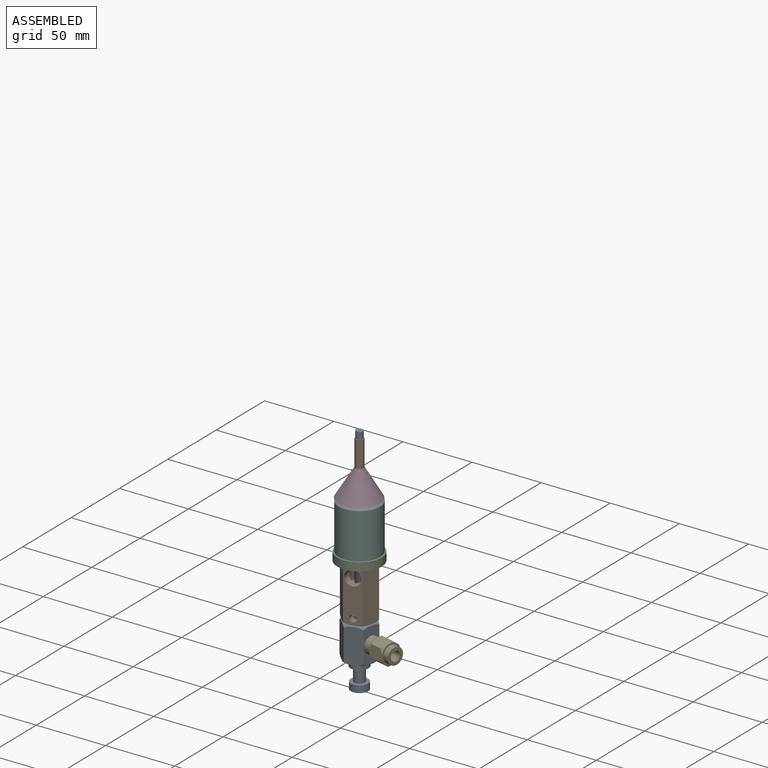
[diagram: assembled view]
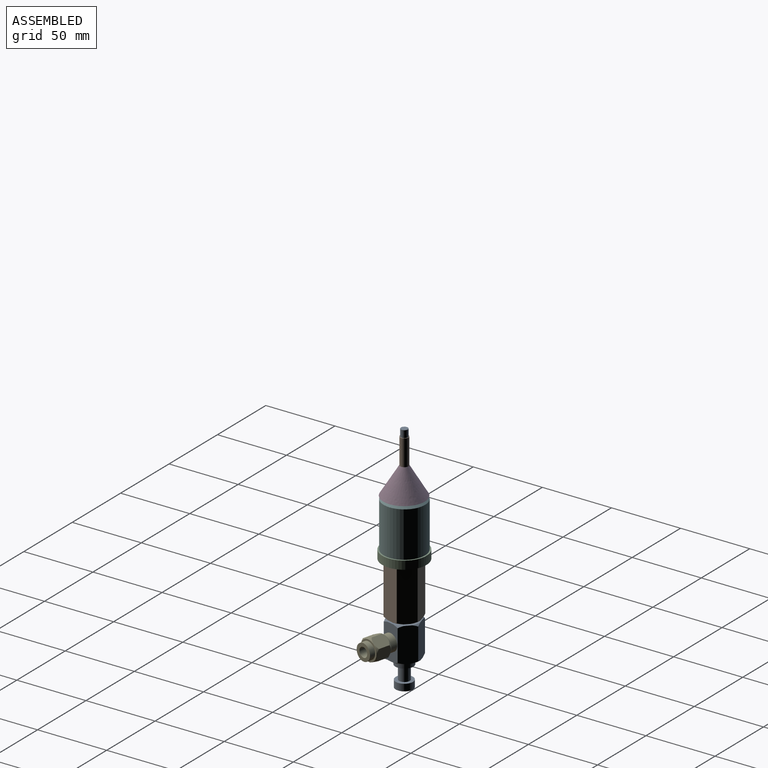
[diagram: assembled view, second angle]
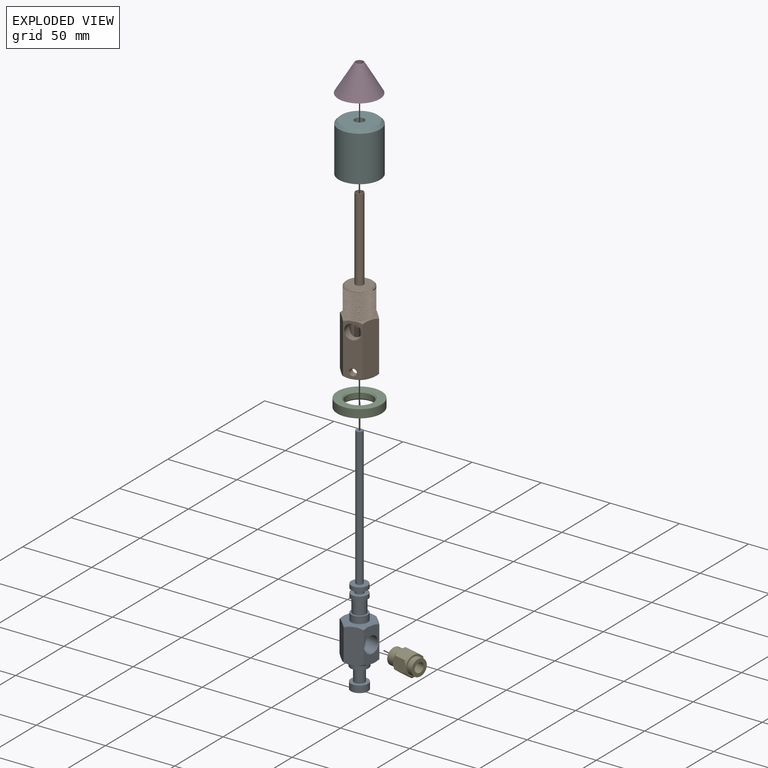
[diagram: exploded view]
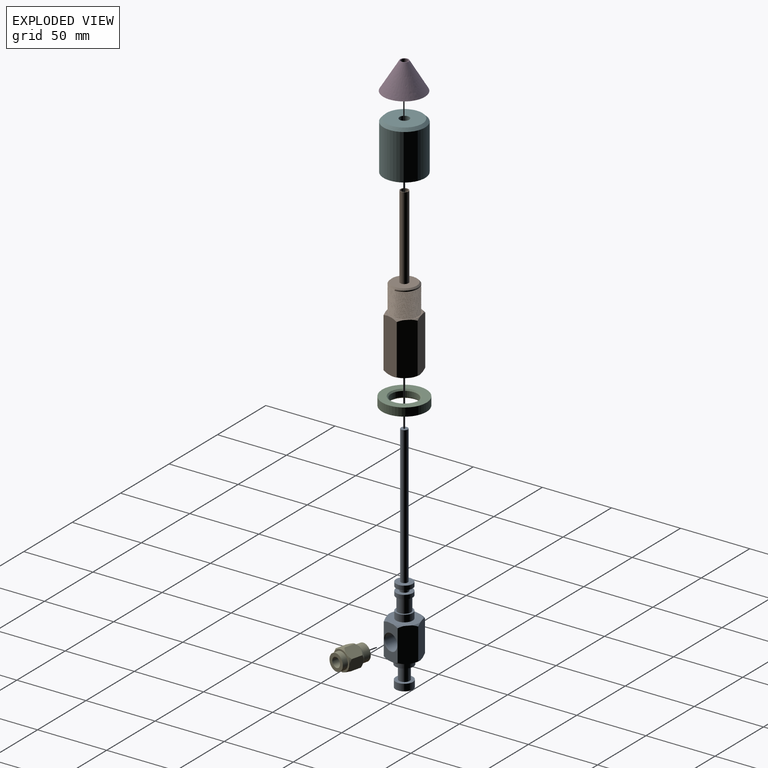
[diagram: exploded view, second angle]
ASSEMBLY  parts=6 mates=5
PART A: 41 faces, bbox 25.5x25.5x169.5 mm
  f0: plane 22.2x22.2mm, normal (0,0,1), area 268.1mm2, adj f1,f2,f3,f4,f5,f6,f8,f32
  f1: plane 25.54x12.49mm, normal (0.29,-0.96,0), area 304.1mm2, adj f0,f2,f6,f7,f27,f28,f32,f37
  f2: plane 25.54x9.62mm, normal (-0.69,-0.73,0), area 304.1mm2, adj f0,f1,f3,f7,f26,f27,f36,f37
  f3: plane 25.54x12.68mm, normal (-0.97,0.23,0), area 304.1mm2, adj f0,f2,f4,f7,f26,f31,f35,f36
  f4: plane 25.54x12.49mm, normal (-0.29,0.96,0), area 304.1mm2, adj f0,f3,f5,f7,f30,f31,f34,f35
  f5: plane 25.54x9.62mm, normal (0.69,0.73,0), area 304.1mm2, adj f0,f4,f6,f7,f29,f30,f33,f34
  f6: plane 25.54x12.68mm, normal (0.97,-0.23,0), area 191mm2, adj f0,f1,f5,f7,f28,f29,f32,f33
  f7: plane 21.98x21.98mm, normal (0,0,-1), area 243.8mm2, adj f1,f2,f3,f4,f5,f6,f25,f26
  f8: cylinder r=6mm len=12mm, axis (0,0,1), area 188.8mm2, adj f0,f9
  f9: plane 12x12mm, normal (0,0,1), area 41.5mm2, adj f8,f10
  f10: cylinder r=4.77mm len=10mm, axis (0,0,1), area 299.9mm2, adj f9,f11
  f11: plane 12x12mm, normal (0,0,-1), area 41.5mm2, adj f10,f12
  f12: cylinder r=6mm len=12mm, axis (0,0,1), area 112.8mm2, adj f11,f13
  f13: plane 12x12mm, normal (0,0,1), area 83.8mm2, adj f12,f14
  f14: cylinder r=3.05mm len=6.11mm, axis (0,0,1), area 57.6mm2, adj f13,f15
  f15: plane 12x12mm, normal (0,0,-1), area 83.8mm2, adj f14,f16
  f16: cylinder r=6mm len=12mm, axis (0,0,1), area 113.1mm2, adj f15,f17
  f17: plane 12x12mm, normal (0,0,1), area 93.5mm2, adj f16,f18
  f18: cylinder r=2.5mm len=100mm, axis (0,0,1), area 1570.8mm2, adj f17,f19
  f19: plane 5x5mm, normal (0,0,1), area 19.6mm2, adj f18
  f20: plane 12.5x12.5mm, normal (0,0,-1), area 122.7mm2, adj f21
  f21: cylinder r=6.25mm len=12.5mm, axis (0,0,1), area 196.3mm2, adj f20,f22
  f22: plane 12.5x12.5mm, normal (0,0,1), area 75.5mm2, adj f21,f23
  f23: cylinder r=3.88mm len=10mm, axis (0,0,1), area 243.6mm2, adj f22,f24
  f24: plane 13x13mm, normal (0,0,-1), area 85.5mm2, adj f23,f25
  f25: cylinder r=6.5mm len=13mm, axis (0,0,1), area 204.2mm2, adj f7,f24
  f26: cone r=16.92mm half-angle=51.2deg, axis (0,0,1), area 7.6mm2, adj f2,f3,f7
  f27: cone r=16.92mm half-angle=51.2deg, axis (0,0,1), area 7.6mm2, adj f1,f2,f7
  f28: cone r=16.92mm half-angle=51.2deg, axis (0,0,1), area 7.6mm2, adj f1,f6,f7
  f29: cone r=16.92mm half-angle=51.2deg, axis (0,0,1), area 7.6mm2, adj f5,f6,f7
  f30: cone r=16.92mm half-angle=51.2deg, axis (0,0,1), area 7.6mm2, adj f4,f5,f7
  f31: cone r=16.92mm half-angle=51.2deg, axis (0,0,1), area 7.6mm2, adj f3,f4,f7
  f32: cone r=16.92mm half-angle=51.2deg, axis (0,0,-1), area 6.1mm2, adj f0,f1,f6
  f33: cone r=16.92mm half-angle=51.2deg, axis (0,0,-1), area 6.1mm2, adj f0,f5,f6
  f34: cone r=16.92mm half-angle=51.2deg, axis (0,0,-1), area 6.1mm2, adj f0,f4,f5
  f35: cone r=16.92mm half-angle=51.2deg, axis (0,0,-1), area 6.1mm2, adj f0,f3,f4
  f36: cone r=16.92mm half-angle=51.2deg, axis (0,0,-1), area 6.1mm2, adj f0,f2,f3
  f37: cone r=16.92mm half-angle=51.2deg, axis (0,0,-1), area 6.1mm2, adj f0,f1,f2
  f38: cylinder r=5.5mm len=17.62mm, axis (0.97,-0.23,0), area 535.6mm2, adj f39,f40
  f39: plane 11x10.7mm, normal (0.97,-0.23,0), area 95mm2, adj f38
  f40: cone r=5.5mm half-angle=45deg, axis (0.97,-0.23,0), area 25.5mm2, adj f6,f38
PART B: 39 faces, bbox 25.5x25.5x118.3 mm
  f0: plane 22x22mm, normal (0,0,-1), area 264.3mm2, adj f2,f3,f4,f5,f6,f7,f13,f21
  f1: plane 22.13x22.13mm, normal (0,0,1), area 66mm2, adj f2,f3,f4,f5,f6,f7,f9,f16
  f2: plane 38.51x12.65mm, normal (-0.24,0.97,0), area 468mm2, adj f0,f1,f5,f7,f21,f23,f30,f32
  f3: plane 38.51x12.5mm, normal (0.96,-0.28,0), area 468mm2, adj f0,f1,f5,f6,f26,f28,f29,f31
  f4: plane 38.51x9.54mm, normal (-0.72,-0.69,0), area 468mm2, adj f0,f1,f6,f7,f22,f24,f25,f27
  f5: plane 38.51x9.54mm, normal (0.72,0.69,0), area 468mm2, adj f0,f1,f2,f3,f29,f30,f31,f32
  f6: plane 38.51x12.65mm, normal (0.24,-0.97,0), area 353.3mm2, adj f0,f1,f3,f4,f25,f26,f27,f28
  f7: plane 38.51x12.5mm, normal (-0.96,0.28,0), area 468mm2, adj f0,f1,f2,f4,f21,f22,f23,f24
  f8: cone r=10mm half-angle=45deg, axis (0,0,-1), area 84.4mm2, adj f9,f10,f17,f19
  f9: cylinder r=10mm len=20mm, axis (0,0,-1), area -118.9mm2, adj f1,f8,f17,f18,f19,f20
  f10: plane 18x18mm, normal (0,0,1), area 226.2mm2, adj f8,f11
  f11: cylinder r=3mm len=60mm, axis (0,0,-1), area 1131mm2, adj f10,f12
  f12: plane 6x6mm, normal (0,0,1), area 8.2mm2, adj f11,f15
  f13: cylinder r=6mm len=50mm, axis (0,0,-1), area 1622mm2, adj f0,f14,f33,f34,f36,f37
  f14: plane 12x12mm, normal (0,0,-1), area 93mm2, adj f13,f15
  f15: cylinder r=2.53mm len=67.82mm, axis (0,0,1), area 1077.7mm2, adj f12,f14
  f16: cylinder r=10mm len=20mm, axis (0,0,-1), area 27mm2, adj f1,f18,f20
  f17: plane 0.95x0.81mm, normal (0.25,-0.97,0), area 0.4mm2, adj f8,f9,f19,f20
  f18: plane 0.96x0.82mm, normal (-0.99,0.17,0), area 0.4mm2, adj f9,f16,f19,f20
  f19: bspline ~23.09x20mm, area 1065.4mm2, adj f8,f9,f17,f18,f20
  f20: bspline ~23.09x20mm, area 1067mm2, adj f9,f16,f17,f18,f19
  f21: cone r=16.82mm half-angle=56deg, axis (0,0,1), area 7.2mm2, adj f0,f2,f7
  f22: cone r=16.82mm half-angle=56deg, axis (0,0,1), area 7.2mm2, adj f0,f4,f7
  f23: cone r=16.82mm half-angle=56deg, axis (0,0,-1), area 6.3mm2, adj f1,f2,f7
  f24: cone r=16.82mm half-angle=56deg, axis (0,0,-1), area 6.3mm2, adj f1,f4,f7
  f25: cone r=16.82mm half-angle=56deg, axis (0,0,1), area 7.2mm2, adj f0,f4,f6
  f26: cone r=16.82mm half-angle=56deg, axis (0,0,1), area 7.2mm2, adj f0,f3,f6
  f27: cone r=16.82mm half-angle=56deg, axis (0,0,-1), area 6.3mm2, adj f1,f4,f6
  f28: cone r=16.82mm half-angle=56deg, axis (0,0,-1), area 6.3mm2, adj f1,f3,f6
  f29: cone r=16.82mm half-angle=56deg, axis (0,0,1), area 7.2mm2, adj f0,f3,f5
  f30: cone r=16.82mm half-angle=56deg, axis (0,0,1), area 7.2mm2, adj f0,f2,f5
  f31: cone r=16.82mm half-angle=56deg, axis (0,0,-1), area 6.3mm2, adj f1,f3,f5
  f32: cone r=16.82mm half-angle=56deg, axis (0,0,-1), area 6.3mm2, adj f1,f2,f5
  f33: cylinder r=2.5mm len=6.44mm, axis (0.24,-0.97,0), area 84.9mm2, adj f6,f13
  f34: cylinder r=2.5mm len=5.49mm, axis (0.24,-0.97,0), area 41.7mm2, adj f13,f35
  f35: plane 5x4.86mm, normal (0.24,-0.97,0), area 19.6mm2, adj f34
  f36: cylinder r=5.5mm len=12.72mm, axis (0.24,-0.97,0), area 222.3mm2, adj f6,f13
  f37: cylinder r=5.5mm len=12.07mm, axis (0.24,-0.97,0), area 127.2mm2, adj f13,f38
  f38: plane 11x10.69mm, normal (0.24,-0.97,0), area 95mm2, adj f37
PART C: 6 faces, bbox 32x32x6 mm
  f0: cylinder r=16mm len=32mm, axis (0,0,-1), area 603.2mm2, adj f1,f2
  f1: plane 32x32mm, normal (0,0,1), area 457.9mm2, adj f0,f5
  f2: plane 32x32mm, normal (0,0,-1), area 457.9mm2, adj f0,f4
  f3: cylinder r=9.5mm len=19mm, axis (0,0,1), area 238.8mm2, adj f4,f5
  f4: cone r=10.5mm half-angle=45deg, axis (0,0,-1), area 88.9mm2, adj f2,f3
  f5: cone r=9.5mm half-angle=45deg, axis (0,0,1), area 88.9mm2, adj f1,f3
PART D: 4 faces, bbox 30.1x30.1x20 mm
  f0: plane 6x6mm, normal (0,0,1), area 8.4mm2, adj f2,f3
  f1: plane 30.06x30.06mm, normal (0,0,-1), area 686.9mm2, adj f2,f3
  f2: bspline ~29.98x29.97mm, area 1318.5mm2, adj f0,f1
  f3: cylinder r=2.51mm len=20mm, axis (0,0,1), area 316mm2, adj f0,f1
PART E: 15 faces, bbox 17.1x17.1x22 mm
  f0: plane 13.73x13.73mm, normal (0,0,1), area 34.9mm2, adj f2,f3
  f1: plane 12x12mm, normal (0,0,1), area 74.6mm2, adj f2,f14
  f2: cylinder r=6mm len=12mm, axis (0,0,1), area 226.2mm2, adj f0,f1
  f3: cone r=6.25mm half-angle=34.7deg, axis (0,0,-1), area 69.3mm2, adj f0,f4,f5,f6,f7,f8,f9
  f4: plane 11.25x8.42mm, normal (0.99,0.13,0), area 86.6mm2, adj f3,f5,f9,f10
  f5: plane 11.18x7.85mm, normal (0.38,0.92,0), area 86.1mm2, adj f3,f4,f6,f10
  f6: plane 11.08x6.74mm, normal (-0.61,0.79,0), area 85.3mm2, adj f3,f5,f7,f10
  f7: plane 11.04x8.42mm, normal (-0.99,-0.13,0), area 84.9mm2, adj f3,f6,f8,f10
  f8: plane 11.1x7.85mm, normal (-0.38,-0.92,0), area 85.5mm2, adj f3,f7,f9,f10
  f9: plane 11.21x6.74mm, normal (0.61,-0.79,0), area 86.3mm2, adj f3,f4,f8,f10
  f10: cone r=6.39mm half-angle=39.5deg, axis (0,0,1), area 36.6mm2, adj f4,f5,f6,f7,f8,f9,f13
  f11: plane 12x12mm, normal (0,0,-1), area 74.6mm2, adj f12,f14
  f12: cylinder r=6mm len=12mm, axis (0,0,1), area 150.8mm2, adj f11,f13
  f13: plane 14.46x14.46mm, normal (0,0,-1), area 51.1mm2, adj f10,f12
  f14: cylinder r=3.5mm len=22mm, axis (0,0,1), area 483.8mm2, adj f1,f11
PART F: 7 faces, bbox 30x30x35 mm
  f0: cylinder r=15mm len=33mm, axis (0,0,-1), area 3110.2mm2, adj f1,f6
  f1: plane 30x30mm, normal (0,0,1), area 392.7mm2, adj f0,f3
  f2: plane 26x26mm, normal (0,0,-1), area 492.4mm2, adj f5,f6
  f3: cylinder r=10mm len=27mm, axis (0,0,1), area 1696.5mm2, adj f1,f4
  f4: plane 20x20mm, normal (0,0,1), area 275.7mm2, adj f3,f5
  f5: cylinder r=3.5mm len=8mm, axis (0,0,-1), area 175.9mm2, adj f2,f4
  f6: cone r=15mm half-angle=45deg, axis (0,0,1), area 248.8mm2, adj f0,f2
PLACE A rot(axis=(0,0,-1),0.5deg) t=(-119.13,-3.07,25.67)mm
PLACE B t=(34.06,-3.07,38.75)mm fixed
PLACE C t=(-160.38,36.6,-66.15)mm
PLACE D rot(axis=(0,0,1),175.6deg) t=(-163.28,-36.01,-5.15)mm
PLACE E rot(axis=(-0.67,-0.52,0.53),112.4deg) t=(-174.44,-129.08,-138.14)mm
PLACE F rot(axis=(-0.04,-1,0),180deg) t=(-77.54,-45.39,14.85)mm
MATE revolute C.f0 <-> B.f8  axis (0,0,-1) through (-119.13,-3.07,-46.15)mm
MATE slider D.f3 <-> F.f0  axis (0,0,-1) through (-119.13,-3.07,-5.15)mm
MATE revolute E.f2 <-> A.f40  axis (-0.97,0.24,0) through (-109.12,-5.54,-97.66)mm
MATE cylindrical A.f8 <-> B.f8  axis (0,0,1) through (-119.13,-3.07,38.8)mm
MATE revolute F.f0 <-> C.f0  axis (0,0,-1) through (-119.13,-3.07,-40.15)mm
